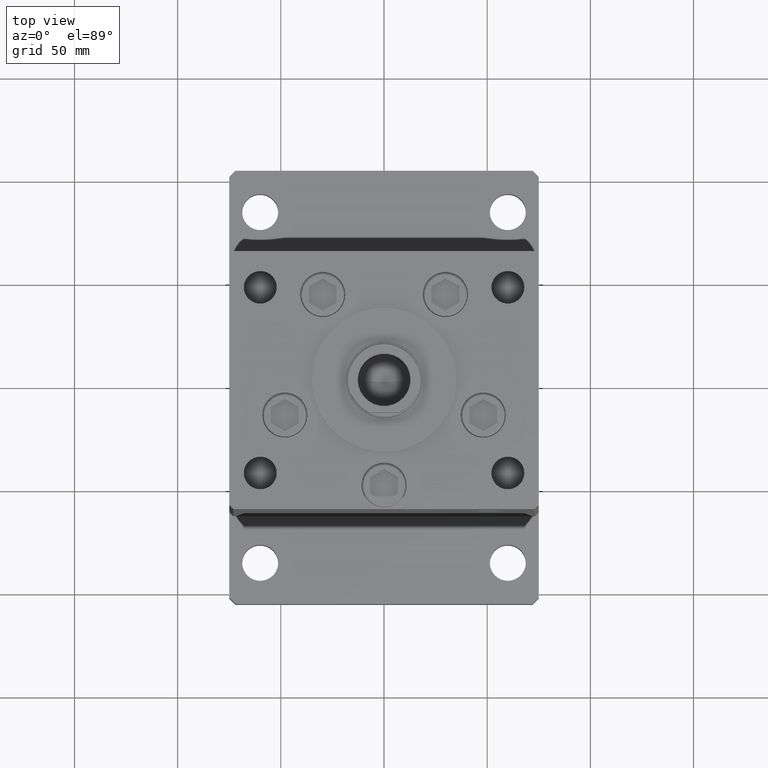
[diagram: clean part render]
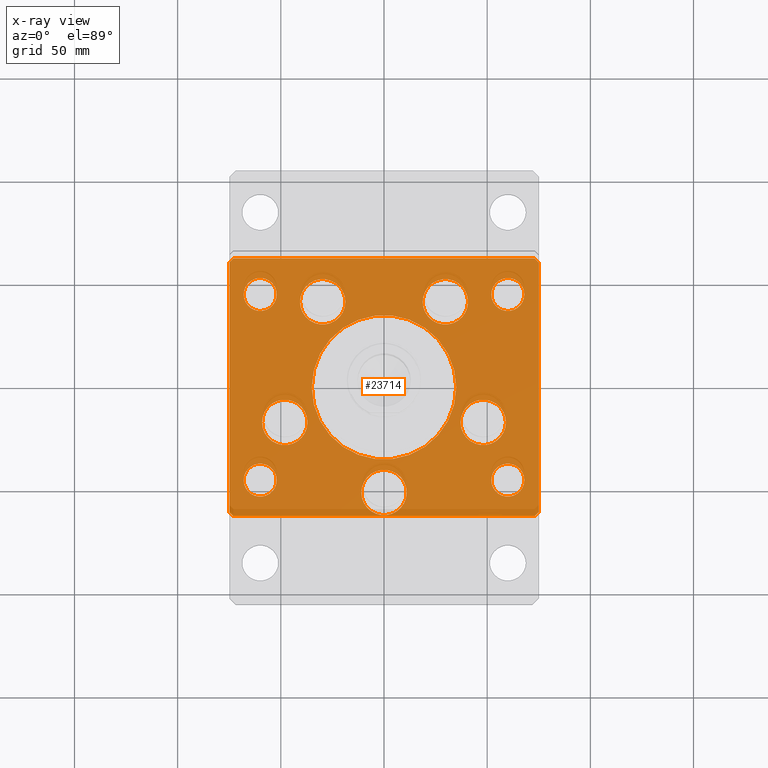
[diagram: x-ray — body ghosted, one internal face saturated and labeled with its STEP entity id]
A machine part, top view, then the same camera in x-ray: the body is ghosted and one INTERNAL B-rep face — a face not visible from any outside direction — is saturated and labeled: STEP entity #23714.
In plain terms, the highlighted planar face has unit normal (0, 0, -1).
Its self-contained STEP definition (entity closure, byte-faithful):
#178 = CARTESIAN_POINT ( 'NONE',  ( 6.245698675651500444E-15, -51.00000000000000000, 0.000000000000000000 ) ) ;
#465 = DIRECTION ( 'NONE',  ( 1.000000000000000000, 0.000000000000000000, 0.000000000000000000 ) ) ;
#467 = VERTEX_POINT ( 'NONE', #46775 ) ;
#1079 = CARTESIAN_POINT ( 'NONE',  ( -67.99999999999998579, 45.00000000000000000, 0.000000000000000000 ) ) ;
#1184 = CARTESIAN_POINT ( 'NONE',  ( 59.08326112068522207, -16.99999999999999645, 0.000000000000000000 ) ) ;
#1243 = EDGE_CURVE ( 'NONE', #21678, #9358, #30222, .T. ) ;
#1596 = VERTEX_POINT ( 'NONE', #16915 ) ;
#1824 = LINE ( 'NONE', #47377, #52643 ) ;
#1944 = CARTESIAN_POINT ( 'NONE',  ( -10.99999999999999289, -51.00000000000000000, 0.000000000000000000 ) ) ;
#1970 = DIRECTION ( 'NONE',  ( 1.000000000000000000, 0.000000000000000000, 0.000000000000000000 ) ) ;
#2072 = CARTESIAN_POINT ( 'NONE',  ( 72.99999999999992895, 62.50000000000001421, 0.000000000000000000 ) ) ;
#2873 = CARTESIAN_POINT ( 'NONE',  ( 68.00000000000000000, -44.99999999999999289, 0.000000000000000000 ) ) ;
#3273 = FACE_BOUND ( 'NONE', #4174, .T. ) ;
#3904 = ORIENTED_EDGE ( 'NONE', *, *, #39093, .T. ) ;
#4069 = DIRECTION ( 'NONE',  ( 1.000000000000000000, 0.000000000000000000, 0.000000000000000000 ) ) ;
#4174 = EDGE_LOOP ( 'NONE', ( #12011, #44454 ) ) ;
#4321 = DIRECTION ( 'NONE',  ( 1.000000000000000000, 0.000000000000000000, 0.000000000000000000 ) ) ;
#4360 = EDGE_CURVE ( 'NONE', #1596, #38393, #39835, .T. ) ;
#4367 = CIRCLE ( 'NONE', #34655, 8.000000000000000000 ) ;
#4425 = EDGE_LOOP ( 'NONE', ( #14228, #19640 ) ) ;
#4723 = DIRECTION ( 'NONE',  ( 0.000000000000000000, 0.000000000000000000, 1.000000000000000000 ) ) ;
#5270 = DIRECTION ( 'NONE',  ( 1.000000000000000000, 9.505334114941407284E-17, 0.000000000000000000 ) ) ;
#5599 = DIRECTION ( 'NONE',  ( 0.000000000000000000, -0.000000000000000000, -1.000000000000000000 ) ) ;
#5806 = FACE_BOUND ( 'NONE', #35080, .T. ) ;
#6050 = CIRCLE ( 'NONE', #49236, 8.000000000000007105 ) ;
#6074 = FACE_BOUND ( 'NONE', #7179, .T. ) ;
#6206 = CARTESIAN_POINT ( 'NONE',  ( 60.00000000000000000, -44.99999999999999289, 0.000000000000000000 ) ) ;
#6218 = CARTESIAN_POINT ( 'NONE',  ( 51.99999999999999289, 44.99999999999999289, 0.000000000000000000 ) ) ;
#6550 = AXIS2_PLACEMENT_3D ( 'NONE', #26657, #23613, #40167 ) ;
#6845 = AXIS2_PLACEMENT_3D ( 'NONE', #34678, #46901, #9769 ) ;
#7080 = FACE_OUTER_BOUND ( 'NONE', #23700, .T. ) ;
#7122 = CIRCLE ( 'NONE', #13197, 11.00000000000000000 ) ;
#7179 = EDGE_LOOP ( 'NONE', ( #35858, #46454 ) ) ;
#7364 = DIRECTION ( 'NONE',  ( 1.000000000000000000, 0.000000000000000000, 0.000000000000000000 ) ) ;
#7382 = CARTESIAN_POINT ( 'NONE',  ( -75.00000000000001421, -60.50000000000001421, 0.000000000000000000 ) ) ;
#7479 = EDGE_CURVE ( 'NONE', #21687, #31981, #11658, .T. ) ;
#7625 = CARTESIAN_POINT ( 'NONE',  ( -60.00000000000000000, 45.00000000000000000, 0.000000000000000000 ) ) ;
#7814 = DIRECTION ( 'NONE',  ( -6.881547673296424104E-16, 1.000000000000000000, 0.000000000000000000 ) ) ;
#8041 = ORIENTED_EDGE ( 'NONE', *, *, #22324, .T. ) ;
#8157 = VERTEX_POINT ( 'NONE', #1184 ) ;
#8676 = AXIS2_PLACEMENT_3D ( 'NONE', #51249, #30115, #13328 ) ;
#8752 = VERTEX_POINT ( 'NONE', #10540 ) ;
#9358 = VERTEX_POINT ( 'NONE', #41218 ) ;
#9423 = CIRCLE ( 'NONE', #39726, 8.000000000000000000 ) ;
#9501 = CIRCLE ( 'NONE', #51048, 8.000000000000007105 ) ;
#9769 = DIRECTION ( 'NONE',  ( 1.000000000000000000, 0.000000000000000000, 0.000000000000000000 ) ) ;
#9918 = EDGE_CURVE ( 'NONE', #40777, #17170, #4367, .T. ) ;
#9949 = ORIENTED_EDGE ( 'NONE', *, *, #23099, .T. ) ;
#10144 = FACE_BOUND ( 'NONE', #25861, .T. ) ;
#10417 = FACE_BOUND ( 'NONE', #31330, .T. ) ;
#10540 = CARTESIAN_POINT ( 'NONE',  ( 72.99999999999992895, 62.50000000000001421, 0.000000000000000000 ) ) ;
#10666 = CARTESIAN_POINT ( 'NONE',  ( -75.00000000000001421, 60.49999999999997158, 0.000000000000000000 ) ) ;
#10724 = DIRECTION ( 'NONE',  ( 0.000000000000000000, -0.000000000000000000, -1.000000000000000000 ) ) ;
#11257 = ORIENTED_EDGE ( 'NONE', *, *, #19831, .T. ) ;
#11424 = FACE_BOUND ( 'NONE', #49164, .T. ) ;
#11657 = CARTESIAN_POINT ( 'NONE',  ( -75.00000000000001421, -60.50000000000001421, 0.000000000000000000 ) ) ;
#11658 = LINE ( 'NONE', #36317, #42388 ) ;
#12011 = ORIENTED_EDGE ( 'NONE', *, *, #26496, .F. ) ;
#12977 = AXIS2_PLACEMENT_3D ( 'NONE', #14471, #47552, #51070 ) ;
#13197 = AXIS2_PLACEMENT_3D ( 'NONE', #24628, #38182, #20842 ) ;
#13328 = DIRECTION ( 'NONE',  ( 1.000000000000000000, 0.000000000000000000, 0.000000000000000000 ) ) ;
#13668 = LINE ( 'NONE', #38071, #39419 ) ;
#13727 = DIRECTION ( 'NONE',  ( 1.000000000000000000, 0.000000000000000000, 0.000000000000000000 ) ) ;
#13748 = CARTESIAN_POINT ( 'NONE',  ( 60.00000000000000000, 44.99999999999999289, 0.000000000000000000 ) ) ;
#13935 = VECTOR ( 'NONE', #31067, 1000.000000000000000 ) ;
#14228 = ORIENTED_EDGE ( 'NONE', *, *, #34184, .F. ) ;
#14263 = CARTESIAN_POINT ( 'NONE',  ( -73.00000000000001421, 62.49999999999998579, 0.000000000000000000 ) ) ;
#14471 = CARTESIAN_POINT ( 'NONE',  ( 48.08326112068522207, -16.99999999999999645, 0.000000000000000000 ) ) ;
#14718 = AXIS2_PLACEMENT_3D ( 'NONE', #23748, #52488, #36489 ) ;
#14752 = ORIENTED_EDGE ( 'NONE', *, *, #4360, .T. ) ;
#15083 = LINE ( 'NONE', #2072, #13935 ) ;
#15343 = EDGE_CURVE ( 'NONE', #34758, #48746, #7122, .T. ) ;
#15346 = CARTESIAN_POINT ( 'NONE',  ( 51.99999999999999289, -44.99999999999999289, 0.000000000000000000 ) ) ;
#15928 = EDGE_CURVE ( 'NONE', #23944, #37492, #19276, .T. ) ;
#16056 = DIRECTION ( 'NONE',  ( 0.7071067811865451302, -0.7071067811865500152, 0.000000000000000000 ) ) ;
#16235 = EDGE_CURVE ( 'NONE', #17170, #40777, #26180, .T. ) ;
#16422 = CIRCLE ( 'NONE', #14718, 8.000000000000007105 ) ;
#16584 = VERTEX_POINT ( 'NONE', #25637 ) ;
#16915 = CARTESIAN_POINT ( 'NONE',  ( -59.08326112068522207, -17.00000000000000711, 0.000000000000000000 ) ) ;
#17170 = VERTEX_POINT ( 'NONE', #21177 ) ;
#17534 = AXIS2_PLACEMENT_3D ( 'NONE', #7625, #36634, #7364 ) ;
#18009 = FACE_BOUND ( 'NONE', #4425, .T. ) ;
#18155 = CIRCLE ( 'NONE', #19914, 11.00000000000000355 ) ;
#18371 = DIRECTION ( 'NONE',  ( 0.7071067811865463515, 0.7071067811865487940, 0.000000000000000000 ) ) ;
#18585 = ORIENTED_EDGE ( 'NONE', *, *, #15343, .T. ) ;
#19276 = CIRCLE ( 'NONE', #40060, 10.99999999999999645 ) ;
#19497 = CARTESIAN_POINT ( 'NONE',  ( -73.00000000000001421, -62.50000000000002842, 0.000000000000000000 ) ) ;
#19533 = DIRECTION ( 'NONE',  ( 0.000000000000000000, -0.000000000000000000, -1.000000000000000000 ) ) ;
#19568 = CIRCLE ( 'NONE', #26473, 8.000000000000007105 ) ;
#19640 = ORIENTED_EDGE ( 'NONE', *, *, #39670, .F. ) ;
#19831 = EDGE_CURVE ( 'NONE', #42093, #8157, #41086, .T. ) ;
#19914 = AXIS2_PLACEMENT_3D ( 'NONE', #44501, #20354, #4069 ) ;
#20027 = CARTESIAN_POINT ( 'NONE',  ( 75.00000000000001421, -60.50000000000000711, 0.000000000000000000 ) ) ;
#20354 = DIRECTION ( 'NONE',  ( 0.000000000000000000, -0.000000000000000000, -1.000000000000000000 ) ) ;
#20385 = CIRCLE ( 'NONE', #50672, 35.00000000000000711 ) ;
#20504 = CIRCLE ( 'NONE', #50787, 35.00000000000000711 ) ;
#20842 = DIRECTION ( 'NONE',  ( 1.000000000000000000, 0.000000000000000000, 0.000000000000000000 ) ) ;
#21042 = EDGE_CURVE ( 'NONE', #16584, #21687, #42747, .T. ) ;
#21177 = CARTESIAN_POINT ( 'NONE',  ( -52.00000000000000000, 45.00000000000000000, 0.000000000000000000 ) ) ;
#21441 = EDGE_CURVE ( 'NONE', #46500, #35681, #28992, .T. ) ;
#21552 = CARTESIAN_POINT ( 'NONE',  ( 73.00000000000001421, -62.50000000000001421, 0.000000000000000000 ) ) ;
#21678 = VERTEX_POINT ( 'NONE', #30980 ) ;
#21687 = VERTEX_POINT ( 'NONE', #10666 ) ;
#22115 = EDGE_CURVE ( 'NONE', #46962, #25033, #20385, .T. ) ;
#22324 = EDGE_CURVE ( 'NONE', #44085, #40248, #13668, .T. ) ;
#22466 = DIRECTION ( 'NONE',  ( 1.000000000000000000, 0.000000000000000000, 0.000000000000000000 ) ) ;
#22915 = DIRECTION ( 'NONE',  ( 1.000000000000000000, 0.000000000000000000, 0.000000000000000000 ) ) ;
#22942 = ORIENTED_EDGE ( 'NONE', *, *, #32604, .T. ) ;
#23099 = EDGE_CURVE ( 'NONE', #53517, #47808, #19568, .T. ) ;
#23297 = AXIS2_PLACEMENT_3D ( 'NONE', #25391, #50340, #13727 ) ;
#23613 = DIRECTION ( 'NONE',  ( -0.000000000000000000, 0.000000000000000000, 1.000000000000000000 ) ) ;
#23687 = LINE ( 'NONE', #48370, #27443 ) ;
#23700 = EDGE_LOOP ( 'NONE', ( #36146, #8041, #25569, #26637, #50223, #44071, #27235, #49970 ) ) ;
#23714 = ADVANCED_FACE ( 'NONE', ( #3273, #47556, #10417, #51335, #43490, #11424, #18009, #10144, #5806, #7080, #6074 ), #26398, .T. ) ;
#23748 = CARTESIAN_POINT ( 'NONE',  ( 60.00000000000000000, 44.99999999999999289, 0.000000000000000000 ) ) ;
#23811 = CARTESIAN_POINT ( 'NONE',  ( 75.00000000000001421, -60.50000000000000711, 0.000000000000000000 ) ) ;
#23944 = VERTEX_POINT ( 'NONE', #26383 ) ;
#24001 = CARTESIAN_POINT ( 'NONE',  ( 35.00000000000000711, -1.387778780781445676E-14, 0.000000000000000000 ) ) ;
#24307 = VECTOR ( 'NONE', #16056, 1000.000000000000114 ) ;
#24628 = CARTESIAN_POINT ( 'NONE',  ( 6.245698675651500444E-15, -51.00000000000000000, 0.000000000000000000 ) ) ;
#25033 = VERTEX_POINT ( 'NONE', #24001 ) ;
#25054 = DIRECTION ( 'NONE',  ( 1.000000000000000000, 0.000000000000000000, 0.000000000000000000 ) ) ;
#25323 = CARTESIAN_POINT ( 'NONE',  ( 0.000000000000000000, -1.387778780781445676E-14, 0.000000000000000000 ) ) ;
#25391 = CARTESIAN_POINT ( 'NONE',  ( -29.73102073172060500, 41.43749999999998579, 0.000000000000000000 ) ) ;
#25569 = ORIENTED_EDGE ( 'NONE', *, *, #29049, .T. ) ;
#25637 = CARTESIAN_POINT ( 'NONE',  ( -73.00000000000001421, 62.49999999999998579, 0.000000000000000000 ) ) ;
#25861 = EDGE_LOOP ( 'NONE', ( #41838, #9949 ) ) ;
#25896 = AXIS2_PLACEMENT_3D ( 'NONE', #178, #5599, #26187 ) ;
#25928 = DIRECTION ( 'NONE',  ( -0.7071067811865451302, -0.7071067811865500152, 0.000000000000000000 ) ) ;
#26089 = ORIENTED_EDGE ( 'NONE', *, *, #32477, .T. ) ;
#26180 = CIRCLE ( 'NONE', #17534, 8.000000000000000000 ) ;
#26187 = DIRECTION ( 'NONE',  ( 1.000000000000000000, 0.000000000000000000, 0.000000000000000000 ) ) ;
#26383 = CARTESIAN_POINT ( 'NONE',  ( 40.73102073172059079, 41.43749999999999289, 0.000000000000000000 ) ) ;
#26398 = PLANE ( 'NONE',  #6550 ) ;
#26473 = AXIS2_PLACEMENT_3D ( 'NONE', #6206, #48227, #22466 ) ;
#26496 = EDGE_CURVE ( 'NONE', #25033, #46962, #20504, .T. ) ;
#26637 = ORIENTED_EDGE ( 'NONE', *, *, #39399, .T. ) ;
#26657 = CARTESIAN_POINT ( 'NONE',  ( 0.000000000000000000, 0.000000000000000000, 0.000000000000000000 ) ) ;
#26984 = ORIENTED_EDGE ( 'NONE', *, *, #38977, .T. ) ;
#27235 = ORIENTED_EDGE ( 'NONE', *, *, #21042, .T. ) ;
#27251 = EDGE_CURVE ( 'NONE', #43760, #8752, #23687, .T. ) ;
#27443 = VECTOR ( 'NONE', #41033, 1000.000000000000114 ) ;
#27759 = ORIENTED_EDGE ( 'NONE', *, *, #15928, .T. ) ;
#27785 = AXIS2_PLACEMENT_3D ( 'NONE', #49552, #44961, #465 ) ;
#27920 = CARTESIAN_POINT ( 'NONE',  ( 48.08326112068522207, -16.99999999999999645, 0.000000000000000000 ) ) ;
#28238 = DIRECTION ( 'NONE',  ( 1.000000000000000000, 0.000000000000000000, 0.000000000000000000 ) ) ;
#28607 = DIRECTION ( 'NONE',  ( 1.000000000000000000, 0.000000000000000000, 0.000000000000000000 ) ) ;
#28992 = CIRCLE ( 'NONE', #38534, 11.00000000000000000 ) ;
#29049 = EDGE_CURVE ( 'NONE', #40248, #43034, #1824, .T. ) ;
#29257 = CARTESIAN_POINT ( 'NONE',  ( 0.000000000000000000, -1.387778780781445676E-14, 0.000000000000000000 ) ) ;
#30115 = DIRECTION ( 'NONE',  ( 0.000000000000000000, -0.000000000000000000, -1.000000000000000000 ) ) ;
#30222 = CIRCLE ( 'NONE', #6845, 8.000000000000000000 ) ;
#30461 = CARTESIAN_POINT ( 'NONE',  ( -40.73102073172060500, 41.43749999999998579, 0.000000000000000000 ) ) ;
#30949 = EDGE_LOOP ( 'NONE', ( #38951, #22942 ) ) ;
#30980 = CARTESIAN_POINT ( 'NONE',  ( -67.99999999999998579, -45.00000000000000000, 0.000000000000000000 ) ) ;
#31067 = DIRECTION ( 'NONE',  ( -1.000000000000000000, -1.901066822988282689E-16, 0.000000000000000000 ) ) ;
#31237 = CARTESIAN_POINT ( 'NONE',  ( -59.99999999999999289, -45.00000000000000000, 0.000000000000000000 ) ) ;
#31330 = EDGE_LOOP ( 'NONE', ( #31604, #27759 ) ) ;
#31604 = ORIENTED_EDGE ( 'NONE', *, *, #43042, .T. ) ;
#31981 = VERTEX_POINT ( 'NONE', #11657 ) ;
#32477 = EDGE_CURVE ( 'NONE', #48746, #34758, #51860, .T. ) ;
#32604 = EDGE_CURVE ( 'NONE', #35681, #46500, #49272, .T. ) ;
#32836 = DIRECTION ( 'NONE',  ( 0.000000000000000000, -0.000000000000000000, -1.000000000000000000 ) ) ;
#32944 = DIRECTION ( 'NONE',  ( -0.000000000000000000, 0.000000000000000000, 1.000000000000000000 ) ) ;
#34184 = EDGE_CURVE ( 'NONE', #467, #43905, #9501, .T. ) ;
#34235 = CARTESIAN_POINT ( 'NONE',  ( -18.73102073172060500, 41.43749999999998579, 0.000000000000000000 ) ) ;
#34388 = DIRECTION ( 'NONE',  ( 0.000000000000000000, 0.000000000000000000, 1.000000000000000000 ) ) ;
#34472 = EDGE_LOOP ( 'NONE', ( #18585, #26089 ) ) ;
#34655 = AXIS2_PLACEMENT_3D ( 'NONE', #37023, #32944, #28607 ) ;
#34678 = CARTESIAN_POINT ( 'NONE',  ( -59.99999999999999289, -45.00000000000000000, 0.000000000000000000 ) ) ;
#34758 = VERTEX_POINT ( 'NONE', #1944 ) ;
#34775 = ORIENTED_EDGE ( 'NONE', *, *, #16235, .F. ) ;
#34872 = DIRECTION ( 'NONE',  ( -0.000000000000000000, 0.000000000000000000, 1.000000000000000000 ) ) ;
#35080 = EDGE_LOOP ( 'NONE', ( #34775, #41382 ) ) ;
#35515 = CARTESIAN_POINT ( 'NONE',  ( 18.73102073172060500, 41.43749999999999289, 0.000000000000000000 ) ) ;
#35517 = EDGE_CURVE ( 'NONE', #47808, #53517, #6050, .T. ) ;
#35681 = VERTEX_POINT ( 'NONE', #34235 ) ;
#35858 = ORIENTED_EDGE ( 'NONE', *, *, #36726, .T. ) ;
#36012 = LINE ( 'NONE', #20027, #40688 ) ;
#36146 = ORIENTED_EDGE ( 'NONE', *, *, #42291, .T. ) ;
#36171 = DIRECTION ( 'NONE',  ( 0.000000000000000000, -0.000000000000000000, -1.000000000000000000 ) ) ;
#36317 = CARTESIAN_POINT ( 'NONE',  ( -75.00000000000001421, 60.49999999999997158, 0.000000000000000000 ) ) ;
#36489 = DIRECTION ( 'NONE',  ( 1.000000000000000000, 0.000000000000000000, 0.000000000000000000 ) ) ;
#36634 = DIRECTION ( 'NONE',  ( -0.000000000000000000, 0.000000000000000000, 1.000000000000000000 ) ) ;
#36726 = EDGE_CURVE ( 'NONE', #9358, #21678, #9423, .T. ) ;
#37023 = CARTESIAN_POINT ( 'NONE',  ( -60.00000000000000000, 45.00000000000000000, 0.000000000000000000 ) ) ;
#37492 = VERTEX_POINT ( 'NONE', #35515 ) ;
#38071 = CARTESIAN_POINT ( 'NONE',  ( -73.00000000000001421, -62.50000000000002842, 0.000000000000000000 ) ) ;
#38182 = DIRECTION ( 'NONE',  ( 0.000000000000000000, -0.000000000000000000, -1.000000000000000000 ) ) ;
#38393 = VERTEX_POINT ( 'NONE', #45550 ) ;
#38534 = AXIS2_PLACEMENT_3D ( 'NONE', #43534, #10724, #22915 ) ;
#38951 = ORIENTED_EDGE ( 'NONE', *, *, #21441, .T. ) ;
#38977 = EDGE_CURVE ( 'NONE', #8157, #42093, #45024, .T. ) ;
#39093 = EDGE_CURVE ( 'NONE', #38393, #1596, #18155, .T. ) ;
#39126 = DIRECTION ( 'NONE',  ( 0.000000000000000000, -0.000000000000000000, -1.000000000000000000 ) ) ;
#39387 = VECTOR ( 'NONE', #25928, 1000.000000000000114 ) ;
#39399 = EDGE_CURVE ( 'NONE', #43034, #43760, #36012, .T. ) ;
#39419 = VECTOR ( 'NONE', #5270, 1000.000000000000000 ) ;
#39591 = DIRECTION ( 'NONE',  ( 0.000000000000000000, -1.000000000000000000, 0.000000000000000000 ) ) ;
#39670 = EDGE_CURVE ( 'NONE', #43905, #467, #16422, .T. ) ;
#39726 = AXIS2_PLACEMENT_3D ( 'NONE', #31237, #39126, #1970 ) ;
#39835 = CIRCLE ( 'NONE', #8676, 11.00000000000000355 ) ;
#40060 = AXIS2_PLACEMENT_3D ( 'NONE', #40724, #32836, #28238 ) ;
#40167 = DIRECTION ( 'NONE',  ( 1.000000000000000000, 0.000000000000000000, 0.000000000000000000 ) ) ;
#40248 = VERTEX_POINT ( 'NONE', #21552 ) ;
#40688 = VECTOR ( 'NONE', #7814, 1000.000000000000000 ) ;
#40724 = CARTESIAN_POINT ( 'NONE',  ( 29.73102073172059789, 41.43749999999999289, 0.000000000000000000 ) ) ;
#40777 = VERTEX_POINT ( 'NONE', #1079 ) ;
#40786 = CARTESIAN_POINT ( 'NONE',  ( 60.00000000000000000, -44.99999999999999289, 0.000000000000000000 ) ) ;
#41033 = DIRECTION ( 'NONE',  ( -0.7071067811865500152, 0.7071067811865451302, 0.000000000000000000 ) ) ;
#41086 = CIRCLE ( 'NONE', #48133, 11.00000000000000355 ) ;
#41218 = CARTESIAN_POINT ( 'NONE',  ( -51.99999999999999289, -45.00000000000000000, 0.000000000000000000 ) ) ;
#41382 = ORIENTED_EDGE ( 'NONE', *, *, #9918, .F. ) ;
#41665 = CARTESIAN_POINT ( 'NONE',  ( 11.00000000000000711, -51.00000000000000000, 0.000000000000000000 ) ) ;
#41838 = ORIENTED_EDGE ( 'NONE', *, *, #35517, .T. ) ;
#42093 = VERTEX_POINT ( 'NONE', #44663 ) ;
#42291 = EDGE_CURVE ( 'NONE', #31981, #44085, #48864, .T. ) ;
#42388 = VECTOR ( 'NONE', #39591, 1000.000000000000000 ) ;
#42747 = LINE ( 'NONE', #14263, #39387 ) ;
#43034 = VERTEX_POINT ( 'NONE', #23811 ) ;
#43042 = EDGE_CURVE ( 'NONE', #37492, #23944, #45997, .T. ) ;
#43382 = EDGE_CURVE ( 'NONE', #8752, #16584, #15083, .T. ) ;
#43490 = FACE_BOUND ( 'NONE', #34472, .T. ) ;
#43497 = CARTESIAN_POINT ( 'NONE',  ( 74.99999999999992895, 60.50000000000002842, 0.000000000000000000 ) ) ;
#43534 = CARTESIAN_POINT ( 'NONE',  ( -29.73102073172060500, 41.43749999999998579, 0.000000000000000000 ) ) ;
#43760 = VERTEX_POINT ( 'NONE', #43497 ) ;
#43905 = VERTEX_POINT ( 'NONE', #6218 ) ;
#44071 = ORIENTED_EDGE ( 'NONE', *, *, #43382, .T. ) ;
#44085 = VERTEX_POINT ( 'NONE', #19497 ) ;
#44454 = ORIENTED_EDGE ( 'NONE', *, *, #22115, .F. ) ;
#44476 = DIRECTION ( 'NONE',  ( 1.000000000000000000, 0.000000000000000000, 0.000000000000000000 ) ) ;
#44501 = CARTESIAN_POINT ( 'NONE',  ( -48.08326112068522207, -17.00000000000000711, 0.000000000000000000 ) ) ;
#44663 = CARTESIAN_POINT ( 'NONE',  ( 37.08326112068521496, -16.99999999999999645, 0.000000000000000000 ) ) ;
#44961 = DIRECTION ( 'NONE',  ( 0.000000000000000000, -0.000000000000000000, -1.000000000000000000 ) ) ;
#45024 = CIRCLE ( 'NONE', #12977, 11.00000000000000355 ) ;
#45550 = CARTESIAN_POINT ( 'NONE',  ( -37.08326112068521496, -17.00000000000000711, 0.000000000000000000 ) ) ;
#45997 = CIRCLE ( 'NONE', #27785, 10.99999999999999645 ) ;
#46454 = ORIENTED_EDGE ( 'NONE', *, *, #1243, .T. ) ;
#46500 = VERTEX_POINT ( 'NONE', #30461 ) ;
#46775 = CARTESIAN_POINT ( 'NONE',  ( 68.00000000000000000, 44.99999999999999289, 0.000000000000000000 ) ) ;
#46901 = DIRECTION ( 'NONE',  ( 0.000000000000000000, -0.000000000000000000, -1.000000000000000000 ) ) ;
#46962 = VERTEX_POINT ( 'NONE', #47078 ) ;
#47078 = CARTESIAN_POINT ( 'NONE',  ( -35.00000000000000711, -9.591524010798718681E-15, 0.000000000000000000 ) ) ;
#47096 = DIRECTION ( 'NONE',  ( 1.000000000000000000, 0.000000000000000000, 0.000000000000000000 ) ) ;
#47377 = CARTESIAN_POINT ( 'NONE',  ( 73.00000000000001421, -62.50000000000001421, 0.000000000000000000 ) ) ;
#47552 = DIRECTION ( 'NONE',  ( 0.000000000000000000, -0.000000000000000000, -1.000000000000000000 ) ) ;
#47556 = FACE_BOUND ( 'NONE', #30949, .T. ) ;
#47808 = VERTEX_POINT ( 'NONE', #2873 ) ;
#48133 = AXIS2_PLACEMENT_3D ( 'NONE', #27920, #19533, #44476 ) ;
#48227 = DIRECTION ( 'NONE',  ( 0.000000000000000000, -0.000000000000000000, -1.000000000000000000 ) ) ;
#48341 = EDGE_LOOP ( 'NONE', ( #11257, #26984 ) ) ;
#48370 = CARTESIAN_POINT ( 'NONE',  ( 74.99999999999992895, 60.50000000000002842, 0.000000000000000000 ) ) ;
#48746 = VERTEX_POINT ( 'NONE', #41665 ) ;
#48864 = LINE ( 'NONE', #7382, #24307 ) ;
#49164 = EDGE_LOOP ( 'NONE', ( #14752, #3904 ) ) ;
#49236 = AXIS2_PLACEMENT_3D ( 'NONE', #40786, #36171, #52704 ) ;
#49272 = CIRCLE ( 'NONE', #23297, 11.00000000000000000 ) ;
#49552 = CARTESIAN_POINT ( 'NONE',  ( 29.73102073172059789, 41.43749999999999289, 0.000000000000000000 ) ) ;
#49970 = ORIENTED_EDGE ( 'NONE', *, *, #7479, .T. ) ;
#50223 = ORIENTED_EDGE ( 'NONE', *, *, #27251, .T. ) ;
#50340 = DIRECTION ( 'NONE',  ( 0.000000000000000000, -0.000000000000000000, -1.000000000000000000 ) ) ;
#50672 = AXIS2_PLACEMENT_3D ( 'NONE', #29257, #34388, #4321 ) ;
#50787 = AXIS2_PLACEMENT_3D ( 'NONE', #25323, #4723, #25054 ) ;
#51048 = AXIS2_PLACEMENT_3D ( 'NONE', #13748, #34872, #47096 ) ;
#51070 = DIRECTION ( 'NONE',  ( 1.000000000000000000, 0.000000000000000000, 0.000000000000000000 ) ) ;
#51249 = CARTESIAN_POINT ( 'NONE',  ( -48.08326112068522207, -17.00000000000000711, 0.000000000000000000 ) ) ;
#51335 = FACE_BOUND ( 'NONE', #48341, .T. ) ;
#51860 = CIRCLE ( 'NONE', #25896, 11.00000000000000000 ) ;
#52488 = DIRECTION ( 'NONE',  ( -0.000000000000000000, 0.000000000000000000, 1.000000000000000000 ) ) ;
#52643 = VECTOR ( 'NONE', #18371, 1000.000000000000000 ) ;
#52704 = DIRECTION ( 'NONE',  ( 1.000000000000000000, 0.000000000000000000, 0.000000000000000000 ) ) ;
#53517 = VERTEX_POINT ( 'NONE', #15346 ) ;